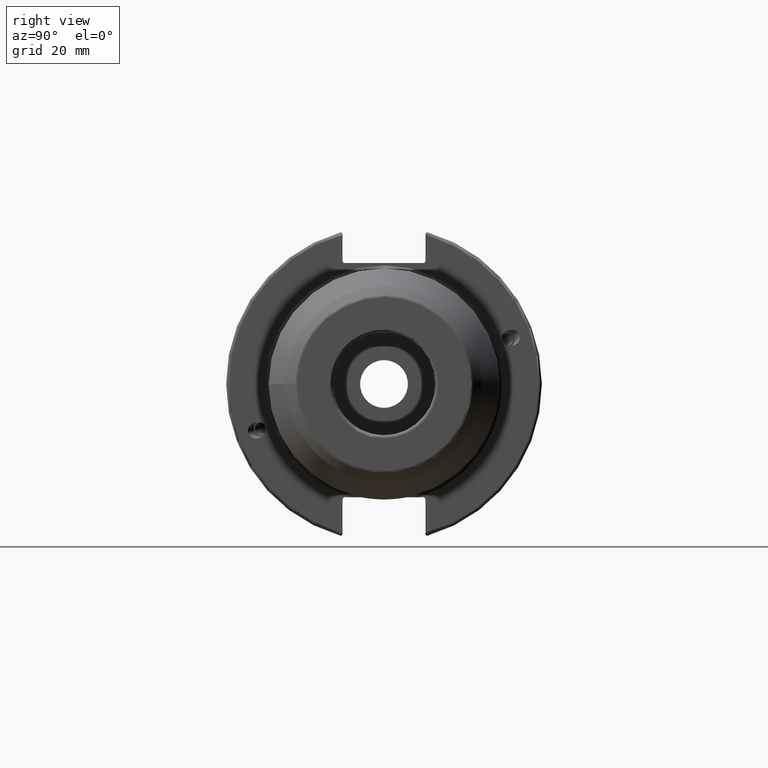
[diagram: clean part render]
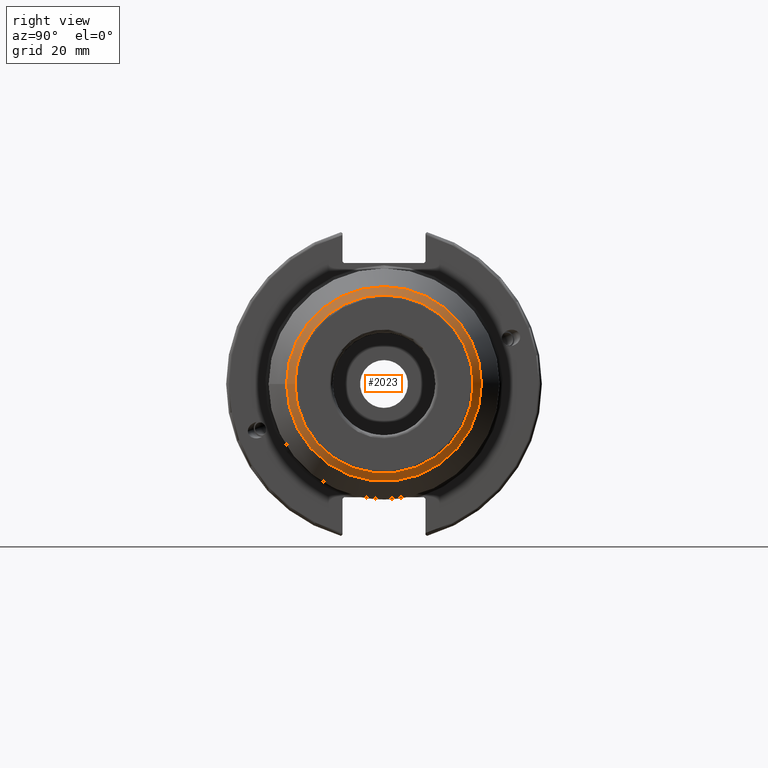
[diagram: same view with one face highlighted and labeled with its STEP entity id]
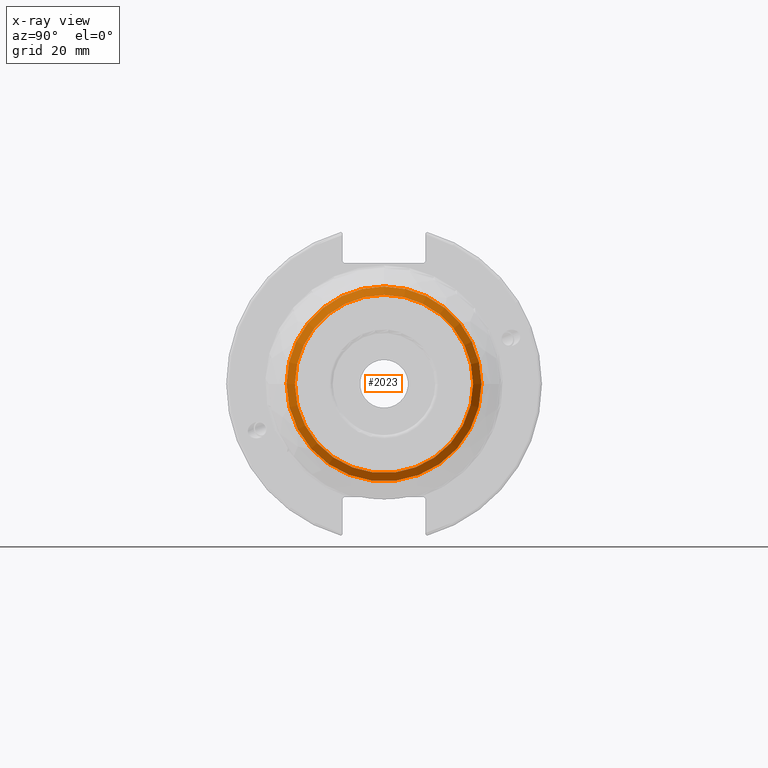
[diagram: x-ray of the same camera — body ghosted, the highlighted face saturated]
A machine part, right view. The second image highlights one B-rep face of the part: STEP entity #2023.
The next image is the same camera in x-ray: the body ghosted, the highlighted face saturated — about 0% of this face is hidden behind the body in this view.
In plain terms, the highlighted conical surface has half-angle 45 deg.
Its self-contained STEP definition (entity closure, byte-faithful):
#53=CONICAL_SURFACE('',#2185,29.0841056075242,0.785398163397457);
#174=FACE_OUTER_BOUND('',#279,.T.);
#279=EDGE_LOOP('',(#1399,#1400,#1401,#1402,#1403,#1404,#1405,#1406));
#391=LINE('',#3259,#490);
#490=VECTOR('',#2548,29.0841056075242);
#616=CIRCLE('',#2181,30.3753179962349);
#617=CIRCLE('',#2182,30.3753179962349);
#618=CIRCLE('',#2183,30.3753179962349);
#620=CIRCLE('',#2186,27.7928932188135);
#621=CIRCLE('',#2187,27.7928932188135);
#622=CIRCLE('',#2188,27.7928932188135);
#789=VERTEX_POINT('',#3246);
#790=VERTEX_POINT('',#3247);
#791=VERTEX_POINT('',#3249);
#792=VERTEX_POINT('',#3254);
#793=VERTEX_POINT('',#3255);
#794=VERTEX_POINT('',#3257);
#1034=EDGE_CURVE('',#789,#790,#616,.T.);
#1035=EDGE_CURVE('',#791,#789,#617,.T.);
#1036=EDGE_CURVE('',#790,#791,#618,.T.);
#1038=EDGE_CURVE('',#792,#793,#620,.T.);
#1039=EDGE_CURVE('',#794,#792,#621,.T.);
#1040=EDGE_CURVE('',#794,#791,#391,.T.);
#1041=EDGE_CURVE('',#793,#794,#622,.T.);
#1399=ORIENTED_EDGE('',*,*,#1038,.F.);
#1400=ORIENTED_EDGE('',*,*,#1039,.F.);
#1401=ORIENTED_EDGE('',*,*,#1040,.T.);
#1402=ORIENTED_EDGE('',*,*,#1035,.T.);
#1403=ORIENTED_EDGE('',*,*,#1034,.T.);
#1404=ORIENTED_EDGE('',*,*,#1036,.T.);
#1405=ORIENTED_EDGE('',*,*,#1040,.F.);
#1406=ORIENTED_EDGE('',*,*,#1041,.F.);
#2023=ADVANCED_FACE('',(#174),#53,.T.);
#2181=AXIS2_PLACEMENT_3D('',#3248,#2534,#2535);
#2182=AXIS2_PLACEMENT_3D('',#3250,#2536,#2537);
#2183=AXIS2_PLACEMENT_3D('',#3251,#2538,#2539);
#2185=AXIS2_PLACEMENT_3D('',#3253,#2542,#2543);
#2186=AXIS2_PLACEMENT_3D('',#3256,#2544,#2545);
#2187=AXIS2_PLACEMENT_3D('',#3258,#2546,#2547);
#2188=AXIS2_PLACEMENT_3D('',#3260,#2549,#2550);
#2534=DIRECTION('center_axis',(1.,0.,0.));
#2535=DIRECTION('ref_axis',(0.,0.,-1.));
#2536=DIRECTION('center_axis',(1.,0.,0.));
#2537=DIRECTION('ref_axis',(0.,0.,-1.));
#2538=DIRECTION('center_axis',(1.,0.,0.));
#2539=DIRECTION('ref_axis',(0.,0.,-1.));
#2542=DIRECTION('center_axis',(-1.,0.,0.));
#2543=DIRECTION('ref_axis',(0.,1.,0.));
#2544=DIRECTION('center_axis',(1.,0.,0.));
#2545=DIRECTION('ref_axis',(0.,0.,-1.));
#2546=DIRECTION('center_axis',(1.,0.,0.));
#2547=DIRECTION('ref_axis',(0.,0.,-1.));
#2548=DIRECTION('',(-0.707106781186541,-0.707106781186554,-8.65956056235501E-17));
#2549=DIRECTION('center_axis',(1.,0.,0.));
#2550=DIRECTION('ref_axis',(0.,0.,-1.));
#3246=CARTESIAN_POINT('',(78.1246820037649,30.3753179962349,0.));
#3247=CARTESIAN_POINT('',(78.1246820037649,-3.71990359571721E-15,30.3753179962349));
#3248=CARTESIAN_POINT('Origin',(78.1246820037649,0.,0.));
#3249=CARTESIAN_POINT('',(78.124682003765,-30.375317996235,-3.71990359571722E-15));
#3250=CARTESIAN_POINT('Origin',(78.1246820037649,0.,0.));
#3251=CARTESIAN_POINT('Origin',(78.1246820037649,0.,0.));
#3253=CARTESIAN_POINT('Origin',(79.4158943924757,0.,0.));
#3254=CARTESIAN_POINT('',(80.7071067811865,27.7928932188135,0.));
#3255=CARTESIAN_POINT('',(80.7071067811865,-3.40364777194642E-15,27.7928932188135));
#3256=CARTESIAN_POINT('Origin',(80.7071067811865,0.,0.));
#3257=CARTESIAN_POINT('',(80.7071067811865,-27.7928932188135,-3.40364777194641E-15));
#3258=CARTESIAN_POINT('Origin',(80.7071067811865,0.,0.));
#3259=CARTESIAN_POINT('',(79.4158943924757,-29.0841056075242,-3.56177568383181E-15));
#3260=CARTESIAN_POINT('Origin',(80.7071067811865,0.,0.));